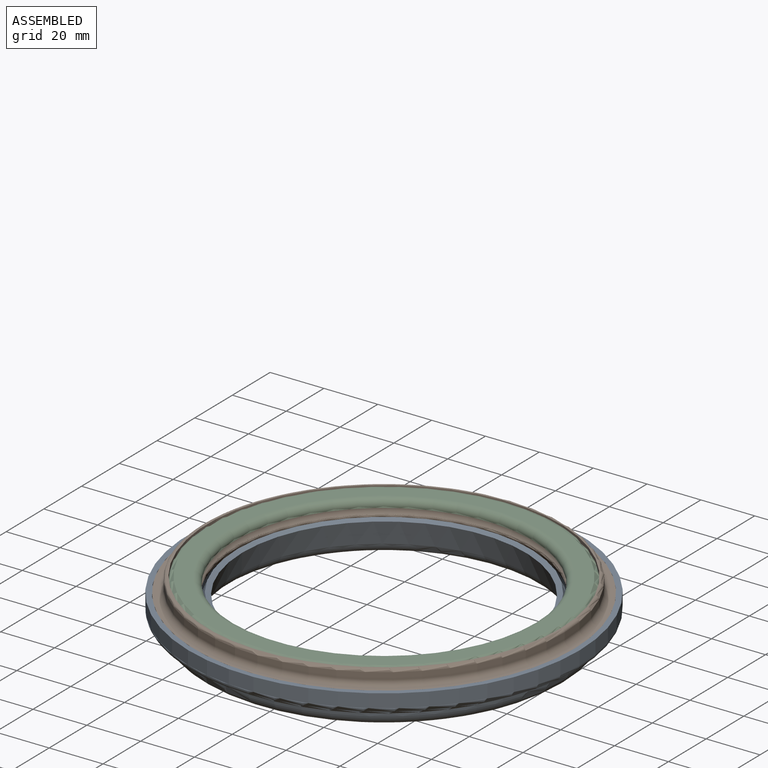
[diagram: assembled view]
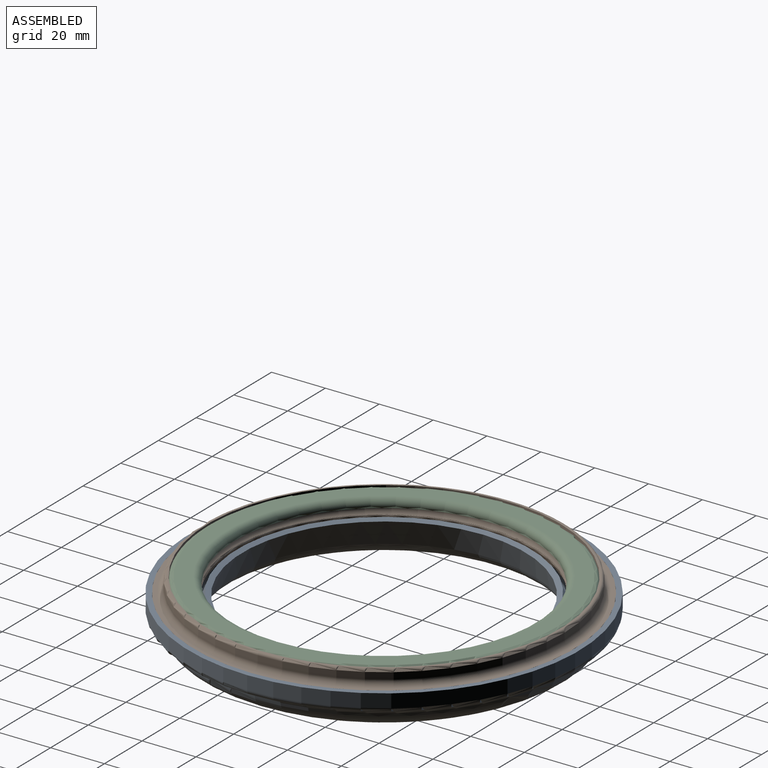
[diagram: assembled view, second angle]
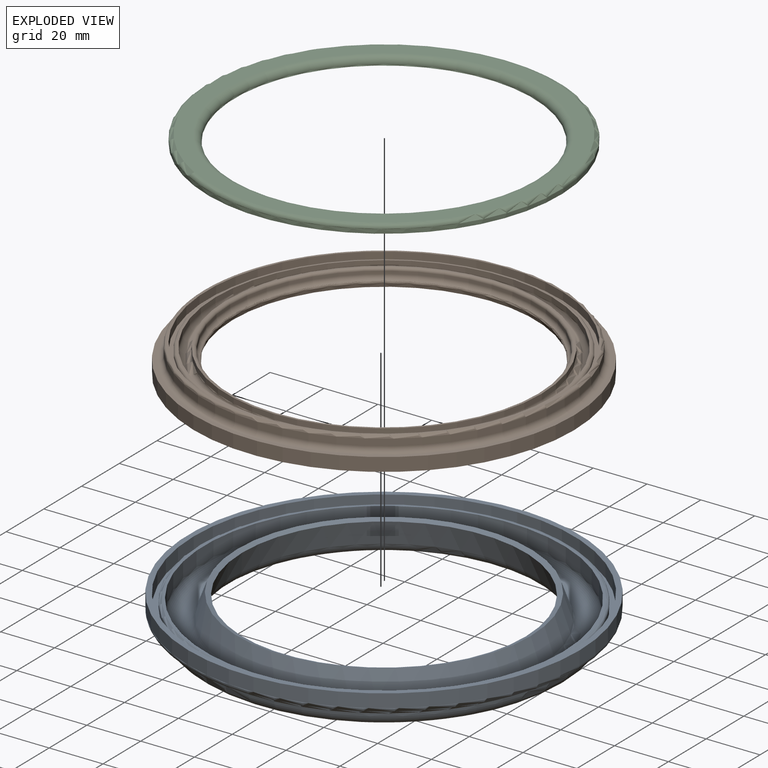
[diagram: exploded view]
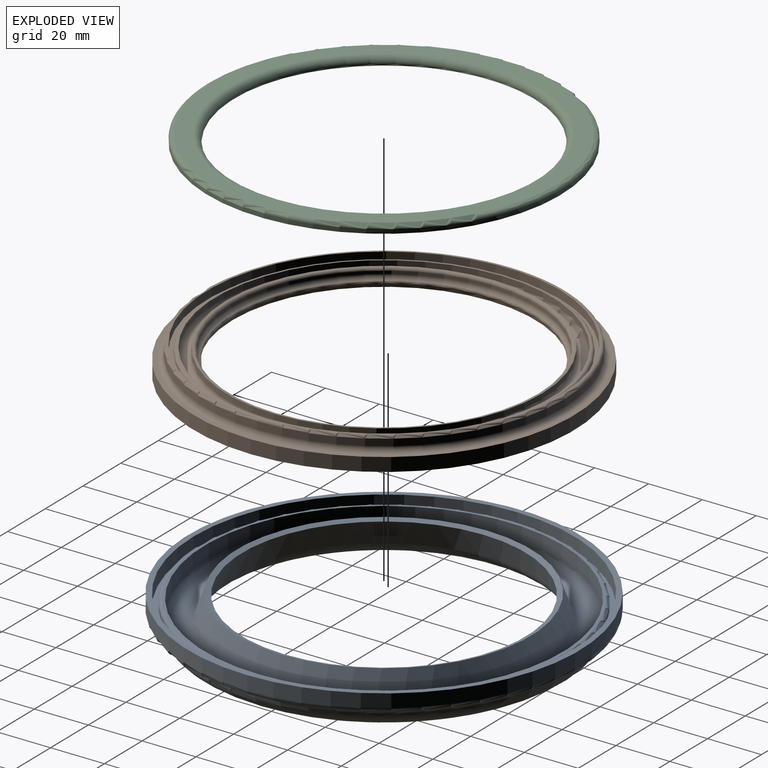
[diagram: exploded view, second angle]
ASSEMBLY  parts=3 mates=4
PART A: 16 faces, bbox 157.2x157.2x14 mm
  f0: cone r=57.79mm half-angle=20deg, axis (0,0,-1), area 3376.9mm2, adj f1,f12
  f1: torus R=62.08mm, axis (0,0,1), area 5021.1mm2, adj f0,f2
  f2: cylinder r=66.65mm len=133.3mm, axis (0,0,1), area 2274.6mm2, adj f1,f3
  f3: plane 135.27x135.27mm, normal (0,0,1), area 415.9mm2, adj f2,f15
  f4: cylinder r=68.64mm len=137.27mm, axis (0,0,1), area 862.5mm2, adj f5,f15
  f5: plane 141.27x141.27mm, normal (0,0,1), area 875.1mm2, adj f4,f6
  f6: cylinder r=70.64mm len=141.27mm, axis (0,0,1), area 2219.1mm2, adj f5,f7
  f7: plane 145.27x145.27mm, normal (0,0,1), area 900.2mm2, adj f6,f8
  f8: cylinder r=72.64mm len=145.27mm, axis (0,0,1), area 2281.9mm2, adj f7,f13
  f9: plane 141.27x141.27mm, normal (0,0,-1), area 57.9mm2, adj f13,f14
  f10: torus R=62.08mm, axis (0,0,1), area 6726.3mm2, adj f11,f14
  f11: cone r=55.91mm half-angle=20deg, axis (0,0,-1), area 3263.9mm2, adj f10,f12
  f12: cone r=52.64mm half-angle=70deg, axis (0,0,1), area 673.3mm2, adj f0,f11
  f13: torus R=70.64mm, axis (0,0,1), area 1419.4mm2, adj f8,f9
  f14: torus R=70.51mm, axis (0,0,1), area 1208.1mm2, adj f9,f10
  f15: torus R=67.64mm, axis (0,0,-1), area 673.8mm2, adj f3,f4
PART B: 24 faces, bbox 149.5x149.5x10.5 mm
  f0: plane 126.16x126.16mm, normal (0,0,1), area 197.4mm2, adj f16,f17
  f1: cylinder r=64.08mm len=128.16mm, axis (0,0,1), area 201.3mm2, adj f2,f17
  f2: plane 131.16x131.16mm, normal (0,0,1), area 611mm2, adj f1,f3
  f3: cylinder r=65.58mm len=131.16mm, axis (0,0,1), area 1236.1mm2, adj f2,f4
  f4: plane 132.16x132.16mm, normal (0,0,1), area 206.8mm2, adj f3,f22
  f5: cylinder r=67.08mm len=134.16mm, axis (0,0,1), area 1053.7mm2, adj f21,f22
  f6: plane 141.27x141.27mm, normal (0,0,1), area 683.2mm2, adj f7,f21
  f7: cylinder r=70.64mm len=141.27mm, axis (0,0,1), area 2219.1mm2, adj f6,f8
  f8: plane 141.27x141.27mm, normal (0,0,-1), area 875.1mm2, adj f7,f9
  f9: cylinder r=68.64mm len=137.27mm, axis (0,0,1), area 862.5mm2, adj f8,f23
  f10: plane 135.27x135.27mm, normal (0,0,-1), area 4411.1mm2, adj f11,f23
  f11: cone r=55.58mm half-angle=20deg, axis (0,0,-1), area 576.6mm2, adj f10,f20
  f12: cylinder r=57.08mm len=114.16mm, axis (0,0,1), area 381.4mm2, adj f18,f19
  f13: plane 117.16x117.16mm, normal (0,0,1), area 183.2mm2, adj f14,f18
  f14: cylinder r=58.58mm len=117.16mm, axis (0,0,1), area 736.1mm2, adj f13,f15
  f15: torus R=60.58mm, axis (0,0,1), area 2391.6mm2, adj f14,f16
  f16: cylinder r=62.58mm len=125.16mm, axis (0,0,1), area 786.4mm2, adj f0,f15
  f17: torus R=63.08mm, axis (0,0,1), area 628.9mm2, adj f0,f1
  f18: torus R=58.08mm, axis (0,0,-1), area 566.9mm2, adj f12,f13
  f19: torus R=55.08mm, axis (0,0,-1), area 782.6mm2, adj f12,f20
  f20: torus R=56.22mm, axis (0,0,-1), area 253.7mm2, adj f11,f19
  f21: torus R=69.08mm, axis (0,0,-1), area 1338.4mm2, adj f5,f6
  f22: torus R=66.08mm, axis (0,0,1), area 658.5mm2, adj f4,f5
  f23: torus R=67.64mm, axis (0,0,-1), area 673.8mm2, adj f9,f10
PART C: 12 faces, bbox 142x142x4.3 mm
  f0: plane 131.16x131.16mm, normal (0,0,-1), area 611mm2, adj f1,f7
  f1: cylinder r=64.08mm len=128.16mm, axis (0,0,1), area 201.3mm2, adj f0,f8
  f2: plane 126.16x126.16mm, normal (0,0,-1), area 1903.2mm2, adj f8,f9
  f3: cylinder r=57.08mm len=114.16mm, axis (0,0,1), area 179.3mm2, adj f4,f9
  f4: plane 114.16x114.16mm, normal (0,0,-1), area 530.9mm2, adj f3,f5
  f5: cylinder r=55.58mm len=111.16mm, axis (0,0,1), area 174.6mm2, adj f4,f10
  f6: plane 128.16x128.16mm, normal (0,0,1), area 2302.6mm2, adj f10,f11
  f7: cylinder r=65.58mm len=131.16mm, axis (0,0,1), area 618.1mm2, adj f0,f11
  f8: torus R=63.08mm, axis (0,0,1), area 628.9mm2, adj f1,f2
  f9: torus R=58.08mm, axis (0,0,1), area 566.9mm2, adj f2,f3
  f10: torus R=58.08mm, axis (0,0,-1), area 1393.8mm2, adj f5,f6
  f11: torus R=64.08mm, axis (0,0,-1), area 962.8mm2, adj f6,f7
PLACE A t=(0.31,0.06,11.83)mm fixed
PLACE B t=(0.31,0.06,31.09)mm
PLACE C rot(axis=(0,0,1),15.7deg) t=(0.31,0.06,31.09)mm
MATE planar A.f0 <-> B.f1  axis (0,0,1) through (0.31,0.06,20.59)mm
MATE planar C.f1 <-> B.f1  axis (0,0,-1) through (0.31,0.06,28.09)mm
MATE cylindrical B.f1 <-> A.f0  axis (0,0,1) through (0.31,0.06,23.09)mm
MATE cylindrical C.f1 <-> A.f0  axis (0,0,1) through (0.31,0.06,28.84)mm
